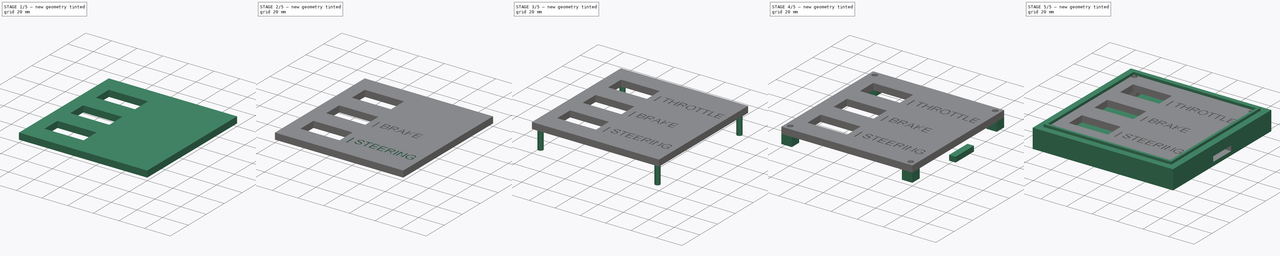
[diagram: build sequence overview — one tinted view per stage of 5, left to right]
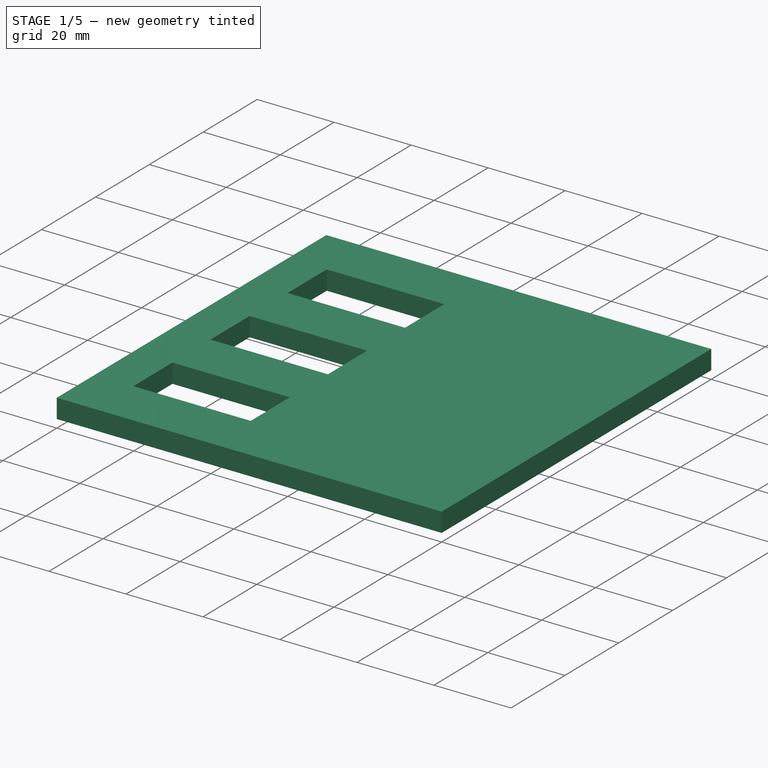
[diagram: stage 1 of 5 — iso view after this stage's code; geometry added in this stage tinted green]
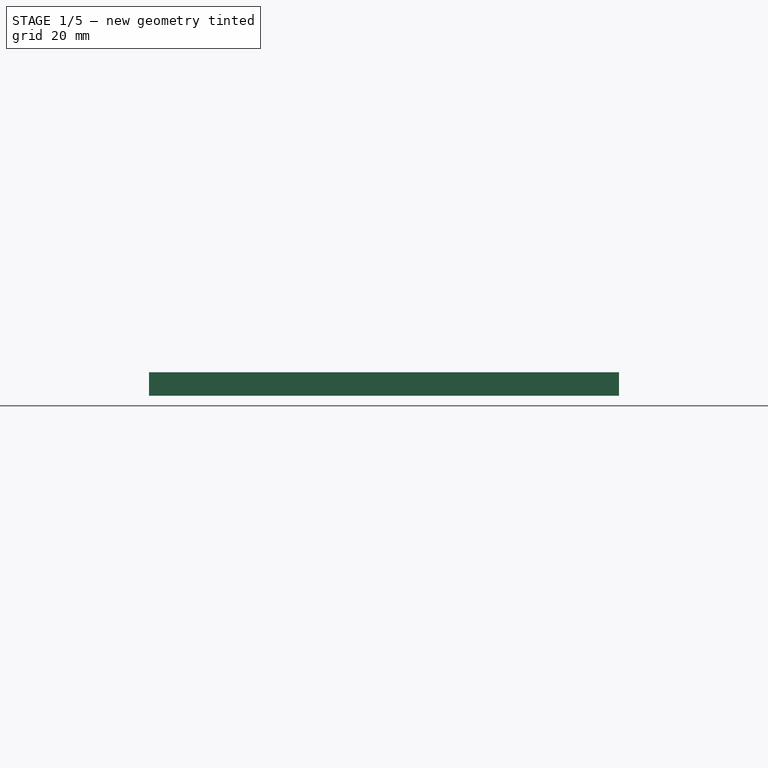
[diagram: stage 1 of 5 — front view after this stage's code; geometry added in this stage tinted green]
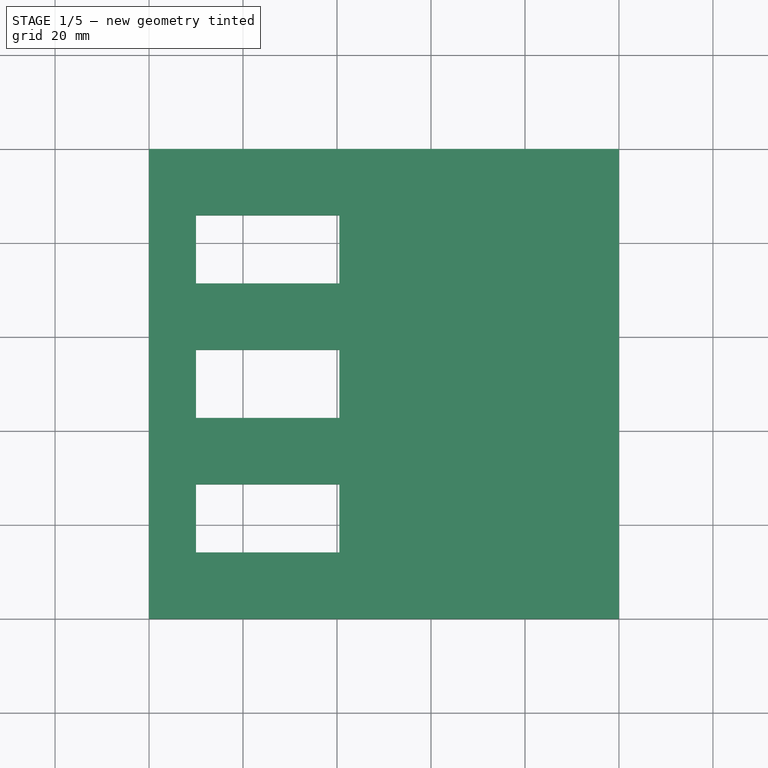
[diagram: stage 1 of 5 — top view after this stage's code; geometry added in this stage tinted green]
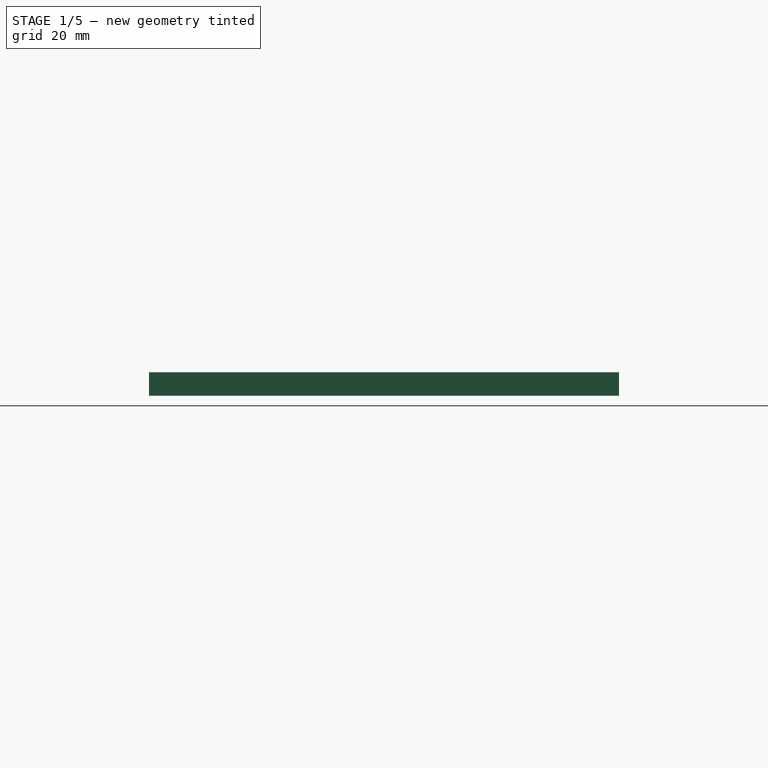
[diagram: stage 1 of 5 — right view after this stage's code; geometry added in this stage tinted green]
FCSTD DOCUMENT  (FreeCAD 0.20R29177 +426 (Git))
Label: ScreenCase
License: All rights reserved
LicenseURL: http://en.wikipedia.org/wiki/All_rights_reserved
objects: Part::Extrusion×11, Sketcher::SketchObject×8, Part::Cut×7, Part::Part2DObjectPython×3, Part::Box×1, Part::MultiFuse×1
note: 31 computed .brp shape members not serialized (recipe doc carries the construction recipe); baked Part::Feature solids carry a one-line shape summary decoded from their .brp

FEATURE [Part::Box] Box  label="InnerTopBase"
  AttacherType = Attacher::AttachEngine3D
  Height = 5
  Length = 100
  Width = 100
FEATURE [Part::Extrusion] Extrude002  label="BrakeExt"
  Base = -> ShapeString001
  Dir = (0,0,1)
  DirMode = 2
  FaceMakerClass = Part::FaceMakerBullseye
  LengthFwd = 1
  LengthRev = 0
  Placement = pos=(44.7391,44.6523,4) rot=(0,0,1;0rad)
  Solid = false
  Symmetric = false
FEATURE [Part::Extrusion] Extrude003  label="WindowExt"
  Base = -> Sketch
  Dir = (0,0,1)
  DirMode = 2
  FaceMakerClass = Part::FaceMakerBullseye
  LengthFwd = 0
  LengthRev = 5
  Solid = true
  Symmetric = false
FEATURE [Part::Cut] Cut  label="InnerTopWindows"
  Base = -> Box
  Tool = -> Extrude003
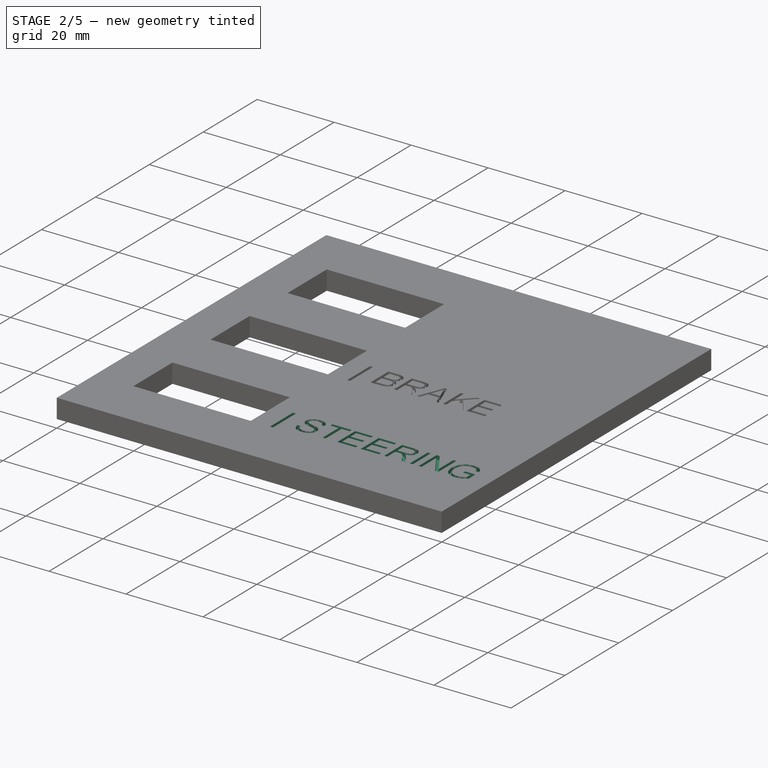
[diagram: stage 2 of 5 — iso view after this stage's code; geometry added in this stage tinted green]
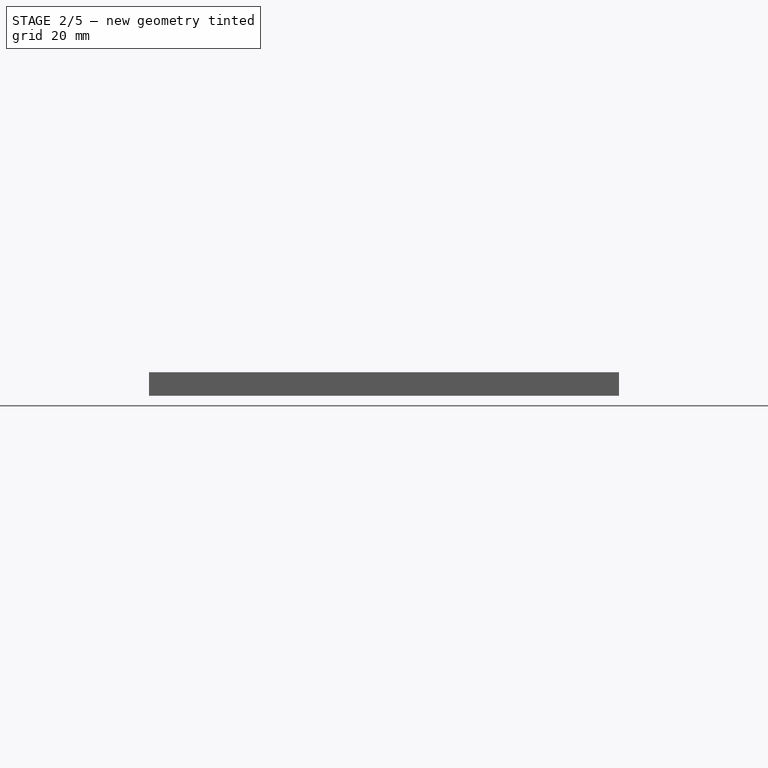
[diagram: stage 2 of 5 — front view after this stage's code; geometry added in this stage tinted green]
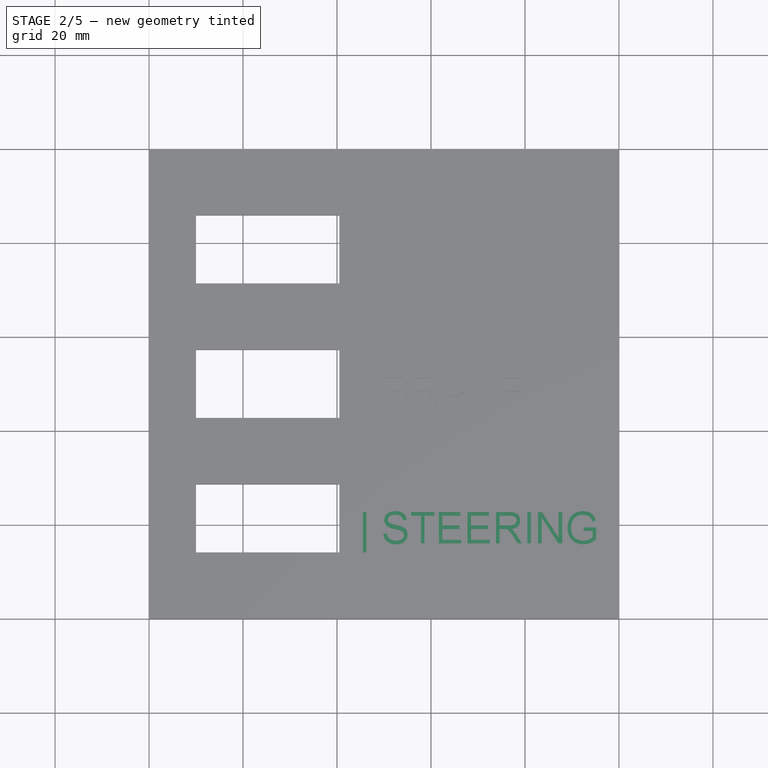
[diagram: stage 2 of 5 — top view after this stage's code; geometry added in this stage tinted green]
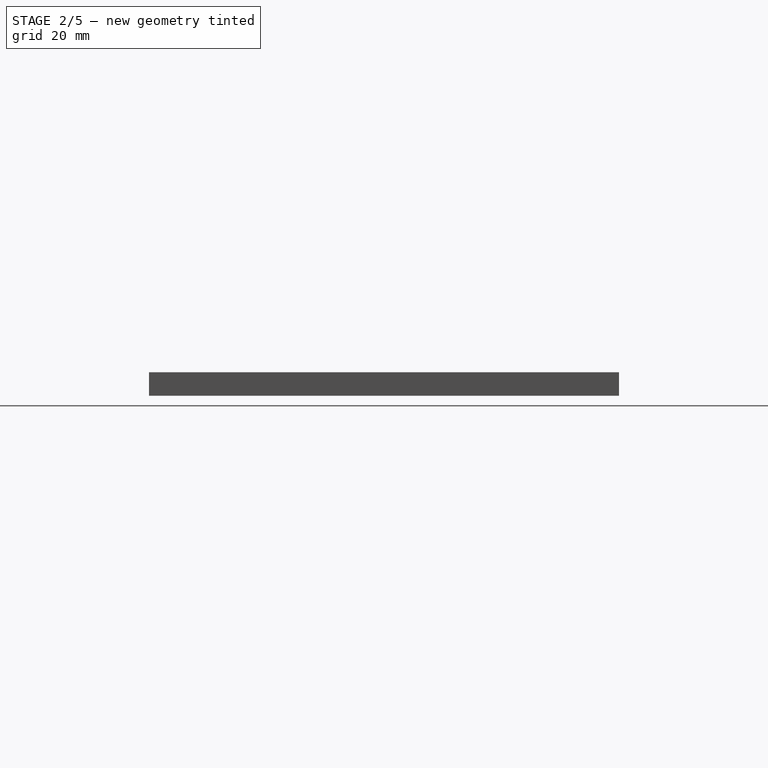
[diagram: stage 2 of 5 — right view after this stage's code; geometry added in this stage tinted green]
FEATURE [Sketcher::SketchObject] Sketch  label="WindowSketch"
  ExternalGeometry = -> [Box]
  FullyConstrained = true
  MapMode = 5
  Placement = pos=(0,0,5) rot=(0,0,1;0rad)
  Support = -> [Box]
  sketch-geometry (16):
    g0: LineSegment StartX=10 StartY=71.375 StartZ=0 EndX=40.5 EndY=71.375 EndZ=0
    g1: LineSegment StartX=40.5 StartY=71.375 StartZ=0 EndX=40.5 EndY=85.875 EndZ=0
    g2: LineSegment StartX=40.5 StartY=85.875 StartZ=0 EndX=10 EndY=85.875 EndZ=0
    g3: LineSegment StartX=10 StartY=85.875 StartZ=0 EndX=10 EndY=71.375 EndZ=0
    g4: LineSegment StartX=10 StartY=42.75 StartZ=0 EndX=40.5 EndY=42.75 EndZ=0
    g5: LineSegment StartX=40.5 StartY=42.75 StartZ=0 EndX=40.5 EndY=57.25 EndZ=0
    g6: LineSegment StartX=40.5 StartY=57.25 StartZ=0 EndX=10 EndY=57.25 EndZ=0
    g7: LineSegment StartX=10 StartY=57.25 StartZ=0 EndX=10 EndY=42.75 EndZ=0
    g8: LineSegment StartX=10 StartY=14.125 StartZ=0 EndX=40.5 EndY=14.125 EndZ=0
    g9: LineSegment StartX=40.5 StartY=14.125 StartZ=0 EndX=40.5 EndY=28.625 EndZ=0
    g10: LineSegment StartX=40.5 StartY=28.625 StartZ=0 EndX=10 EndY=28.625 EndZ=0
    g11: LineSegment StartX=10 StartY=28.625 StartZ=0 EndX=10 EndY=14.125 EndZ=0
    g12: LineSegment StartX=10 StartY=28.625 StartZ=0 EndX=10 EndY=42.75 EndZ=0
    g13: LineSegment StartX=10 StartY=57.25 StartZ=0 EndX=10 EndY=71.375 EndZ=0
    g14: LineSegment StartX=10 StartY=85.875 StartZ=0 EndX=10 EndY=100 EndZ=0
    g15: LineSegment StartX=10 StartY=14.125 StartZ=0 EndX=10 EndY=0 EndZ=0
  constraints (46):
    c: Coincident(g0,g1)
    c: Coincident(g1,g2)
    c: Coincident(g2,g3)
    c: Coincident(g3,g0)
    c: Horizontal(g0)
    c: Horizontal(g2)
    c: Vertical(g1)
    c: Vertical(g3)
    c: Coincident(g4,g5)
    c: Coincident(g5,g6)
    c: Coincident(g6,g7)
    c: Coincident(g7,g4)
    c: Horizontal(g4)
    c: Horizontal(g6)
    c: Vertical(g5)
    c: Vertical(g7)
    c: Coincident(g8,g9)
    c: Coincident(g9,g10)
    c: Coincident(g10,g11)
    c: Coincident(g11,g8)
    c: Horizontal(g8)
    c: Horizontal(g10)
    c: Vertical(g9)
    c: Vertical(g11)
    c: Coincident(g12,g10)
    c: Coincident(g12,g4)
    c: Vertical(g12)
    c: Coincident(g13,g6)
    c: Coincident(g13,g0)
    c: Vertical(g13)
    c: Coincident(g14,g2)
    c: PointOnObject(g14,g-4)
    c: Vertical(g14)
    c: Coincident(g15,g8)
    c: PointOnObject(g15,g-5)
    c: Vertical(g15)
    c: Equal(g14,g13)
    c: Equal(g13,g12)
    c: Equal(g12,g15)
    c: Distance(g2) = 30.5
    c: DistanceY(g3,g3) = 14.5
    c: Equal(g3,g7)
    c: Equal(g7,g11)
    c: Equal(g2,g6)
    c: Equal(g6,g10)
    c: DistanceX(g-6,g2) = 10
FEATURE [Part::Part2DObjectPython] ShapeString  label="ThrottleStr"  # Draft 2D object (typed FeaturePython)
  FontFile = <path>
  MakeFace = true
  Placement = pos=(-0.43482,1.08705,0) rot=(0,0,1;0rad)
  Size = 7
  String = | THROTTLE
  Tracking = 0
FEATURE [Part::Part2DObjectPython] ShapeString001  label="ShapeStr"  # Draft 2D object (typed FeaturePython)
  FontFile = <path>
  MakeFace = true
  Size = 7
  String = | BRAKE
  Tracking = 0
FEATURE [Part::Part2DObjectPython] ShapeString002  label="SteeringStr"  # Draft 2D object (typed FeaturePython)
  FontFile = <path>
  MakeFace = true
  Size = 7
  String = | STEERING
  Tracking = 0
FEATURE [Part::Extrusion] Extrude  label="ThrottleExt"
  Base = -> ShapeString
  Dir = (0,0,1)
  DirMode = 2
  FaceMakerClass = Part::FaceMakerBullseye
  LengthFwd = 1
  LengthRev = 0
  Placement = pos=(45.1739,72.1903,4) rot=(0,0,1;0rad)
  Solid = false
  Symmetric = false
FEATURE [Part::Extrusion] Extrude001  label="SteeringExt"
  Base = -> ShapeString002
  Dir = (0,0,1)
  DirMode = 2
  FaceMakerClass = Part::FaceMakerBullseye
  LengthFwd = 1
  LengthRev = 0
  Placement = pos=(44.7391,16.0273,4) rot=(0,0,1;0rad)
  Solid = false
  Symmetric = false
FEATURE [Sketcher::SketchObject] Sketch001  label="TextStartGeom"
  ExternalGeometry = -> [Cut]
  FullyConstrained = true
  MapMode = 5
  Placement = pos=(0,0,5) rot=(0,0,1;0rad)
  Support = -> [Cut]
  sketch-geometry (3):
    g0: LineSegment StartX=40.5 StartY=71.375 StartZ=0 EndX=45.5 EndY=71.375 EndZ=0
    g1: LineSegment StartX=40.5 StartY=42.75 StartZ=0 EndX=45.5 EndY=42.75 EndZ=0
    g2: LineSegment StartX=40.5 StartY=14.125 StartZ=0 EndX=45.5 EndY=14.125 EndZ=0
  constraints (9):
    c: Coincident(g0,g-3)
    c: Horizontal(g0)
    c: Coincident(g1,g-4)
    c: Horizontal(g1)
    c: Coincident(g2,g-5)
    c: Horizontal(g2)
    c: Equal(g2,g1)
    c: Equal(g1,g0)
    c: Distance(g0) = 5
FEATURE [Part::Cut] Cut001
  Base = -> Cut
  Tool = -> Extrude002
FEATURE [Part::Cut] Cut002
  Base = -> Cut001
  Tool = -> Extrude001
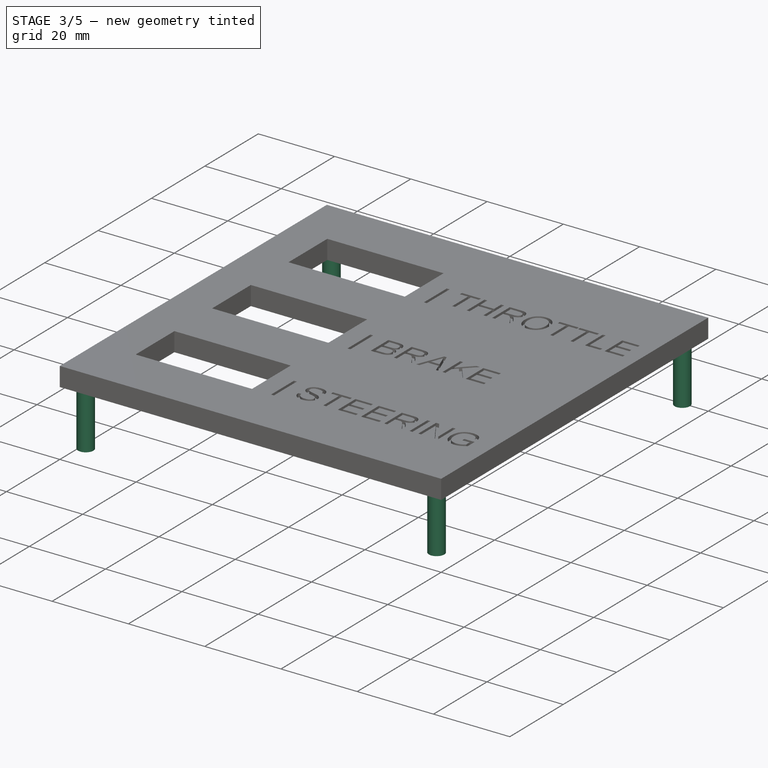
[diagram: stage 3 of 5 — iso view after this stage's code; geometry added in this stage tinted green]
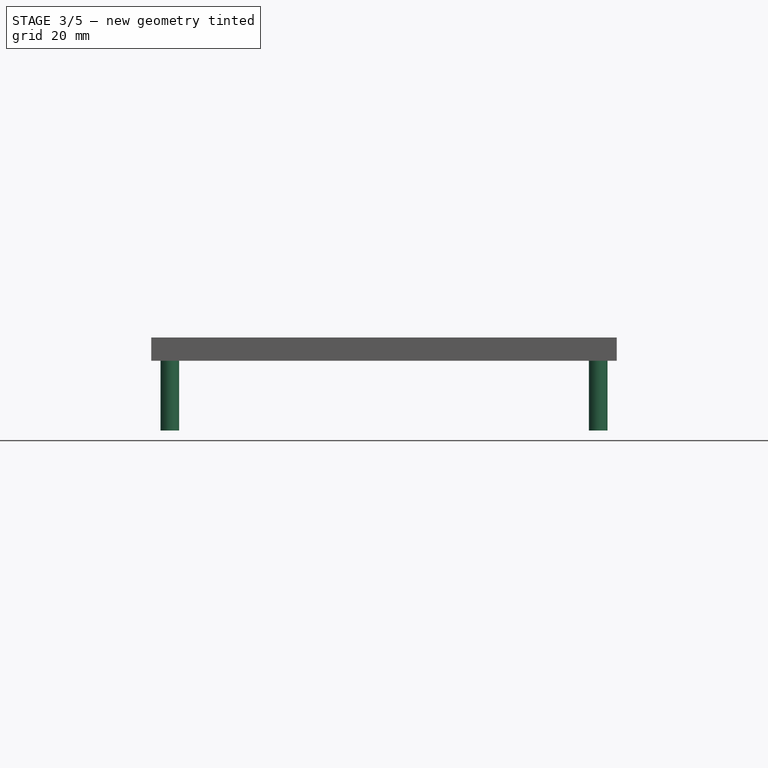
[diagram: stage 3 of 5 — front view after this stage's code; geometry added in this stage tinted green]
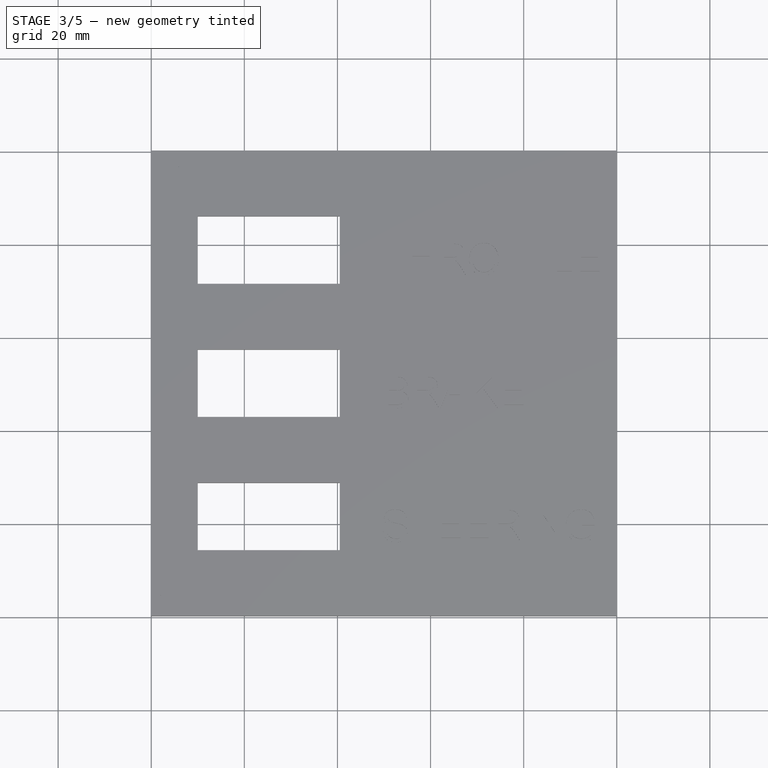
[diagram: stage 3 of 5 — top view after this stage's code; geometry added in this stage tinted green]
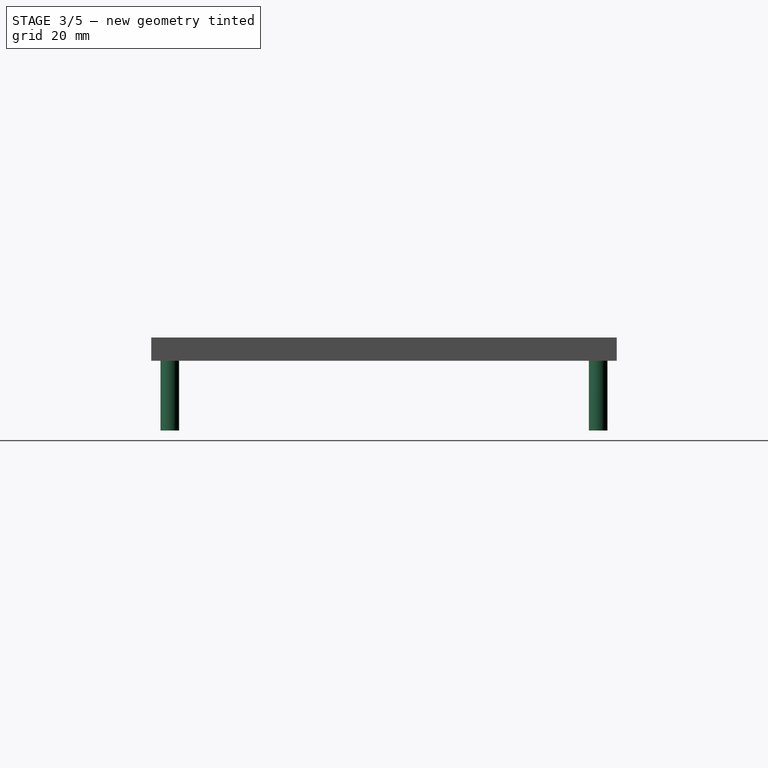
[diagram: stage 3 of 5 — right view after this stage's code; geometry added in this stage tinted green]
FEATURE [Part::Cut] Cut003  label="TopWindowsText"
  Base = -> Cut002
  Tool = -> Extrude
FEATURE [Sketcher::SketchObject] Sketch003
  ExternalGeometry = -> [Cut003]
  FullyConstrained = true
  MapMode = 5
  Placement = pos=(0,0,5) rot=(0,0,1;0rad)
  Support = -> [Cut003]
  sketch-geometry (12):
    g0: Circle CenterX=4 CenterY=96 CenterZ=0 NormalX=0 NormalY=0 NormalZ=1 AngleXU=0 Radius=2
    g1: Circle CenterX=96 CenterY=96 CenterZ=0 NormalX=0 NormalY=0 NormalZ=1 AngleXU=0 Radius=2
    g2: Circle CenterX=96 CenterY=4 CenterZ=0 NormalX=0 NormalY=0 NormalZ=1 AngleXU=0 Radius=2
    g3: Circle CenterX=4 CenterY=4 CenterZ=0 NormalX=0 NormalY=0 NormalZ=1 AngleXU=0 Radius=2
    g4: LineSegment StartX=4 StartY=100 StartZ=0 EndX=4 EndY=96 EndZ=0
    g5: LineSegment StartX=4 StartY=96 StartZ=0 EndX=0 EndY=96 EndZ=0
    g6: LineSegment StartX=96 StartY=96 StartZ=0 EndX=96 EndY=100 EndZ=0
    g7: LineSegment StartX=96 StartY=96 StartZ=0 EndX=100 EndY=96 EndZ=0
    g8: LineSegment StartX=96 StartY=4 StartZ=0 EndX=100 EndY=4 EndZ=0
    g9: LineSegment StartX=96 StartY=4 StartZ=0 EndX=96 EndY=0 EndZ=0
    g10: LineSegment StartX=4 StartY=4 StartZ=0 EndX=4 EndY=0 EndZ=0
    g11: LineSegment StartX=4 StartY=4 StartZ=0 EndX=0 EndY=4 EndZ=0
  constraints (36):
    c: PointOnObject(g4,g-3)
    c: Coincident(g4,g0)
    c: Vertical(g4)
    c: Coincident(g5,g0)
    c: PointOnObject(g5,g-2)
    c: Horizontal(g5)
    c: Equal(g5,g4)
    c: Radius(g0) = 2
    c: DistanceX(g5,g5) = 4
    c: Equal(g1,g0)
    c: Coincident(g6,g1)
    c: PointOnObject(g6,g-3)
    c: Vertical(g6)
    c: Coincident(g7,g1)
    c: PointOnObject(g7,g-4)
    c: Horizontal(g7)
    c: Equal(g6,g7)
    c: Equal(g7,g4)
    c: Equal(g2,g0)
    c: Equal(g3,g0)
    c: Coincident(g8,g2)
    c: PointOnObject(g8,g-4)
    c: Horizontal(g8)
    c: Coincident(g9,g2)
    c: PointOnObject(g9,g-1)
    c: Vertical(g9)
    c: Coincident(g10,g3)
    c: PointOnObject(g10,g-1)
    c: Vertical(g10)
    c: Coincident(g11,g3)
    c: PointOnObject(g11,g-2)
    c: Horizontal(g11)
    c: Equal(g8,g9)
    c: Equal(g9,g4)
    c: Equal(g10,g11)
    c: Equal(g11,g4)
FEATURE [Part::Extrusion] Extrude005  label="ScrewsTop"
  Base = -> Sketch003
  Dir = (0,0,1)
  DirMode = 2
  FaceMakerClass = Part::FaceMakerBullseye
  LengthFwd = 0
  LengthRev = 20
  Solid = true
  Symmetric = false
FEATURE [Part::Extrusion] Extrude010  label="ScrewsBase"
  Base = -> Sketch003
  Dir = (0,0,1)
  DirMode = 2
  FaceMakerClass = Part::FaceMakerBullseye
  LengthFwd = 0
  LengthRev = 20
  Solid = true
  Symmetric = false
FEATURE [Part::Cut] Cut006  label="Top"
  Base = -> Cut003
  Tool = -> Extrude005
note: 3 file-system paths scrubbed to <path> (originals preserved in the JSON sidecar)
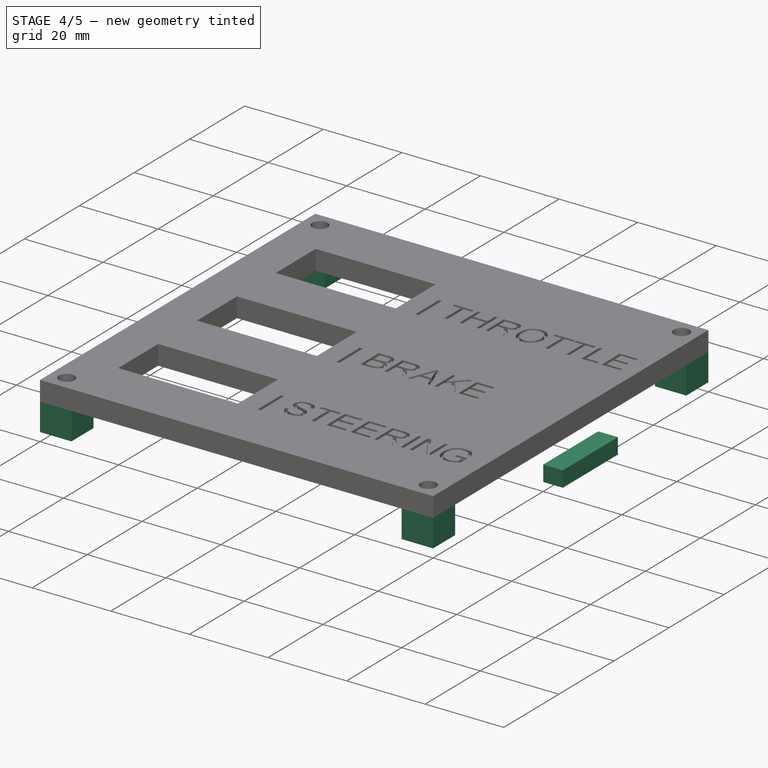
[diagram: stage 4 of 5 — iso view after this stage's code; geometry added in this stage tinted green]
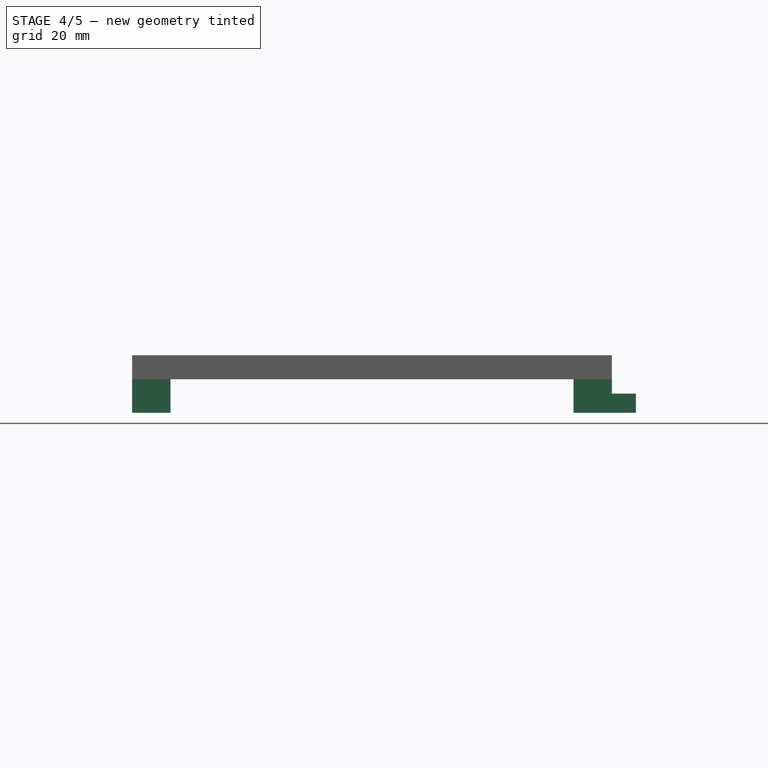
[diagram: stage 4 of 5 — front view after this stage's code; geometry added in this stage tinted green]
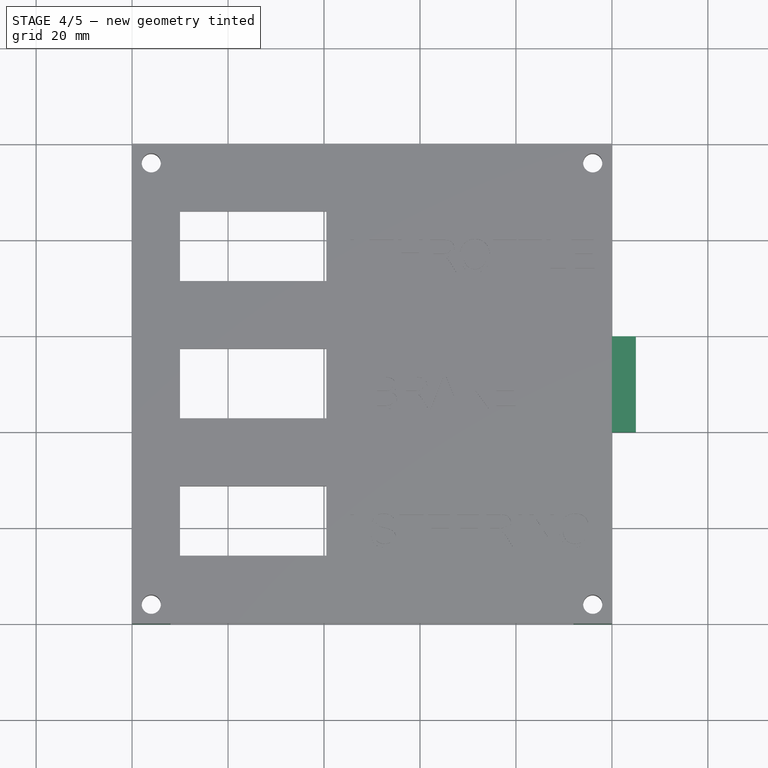
[diagram: stage 4 of 5 — top view after this stage's code; geometry added in this stage tinted green]
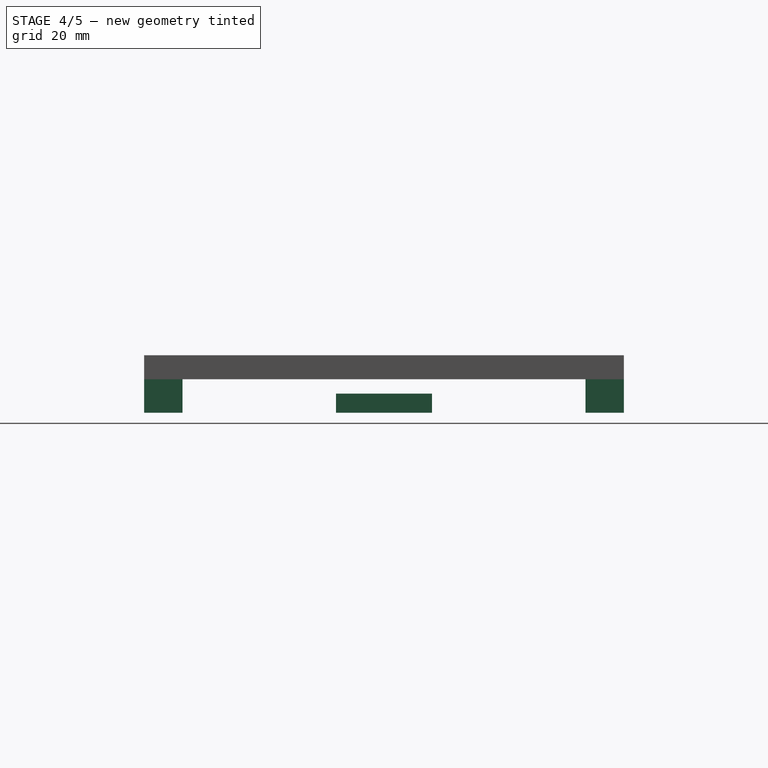
[diagram: stage 4 of 5 — right view after this stage's code; geometry added in this stage tinted green]
FEATURE [Sketcher::SketchObject] Sketch004
  ExternalGeometry = -> [Cut003,Extrude005]
  FullyConstrained = true
  MapMode = 5
  Placement = pos=(0,0,0) rot=(1,0,0;3.14159rad)
  Support = -> [Cut003]
  sketch-geometry (18):
    g0: LineSegment StartX=0 StartY=0 StartZ=0 EndX=8 EndY=0 EndZ=0
    g1: LineSegment StartX=8 StartY=0 StartZ=0 EndX=8 EndY=-8 EndZ=0
    g2: LineSegment StartX=8 StartY=-8 StartZ=0 EndX=0 EndY=-8 EndZ=0
    g3: LineSegment StartX=0 StartY=-8 StartZ=0 EndX=0 EndY=0 EndZ=0
    g4: LineSegment StartX=100 StartY=0 StartZ=0 EndX=92 EndY=0 EndZ=0
    g5: LineSegment StartX=92 StartY=0 StartZ=0 EndX=92 EndY=-8 EndZ=0
    g6: LineSegment StartX=92 StartY=-8 StartZ=0 EndX=100 EndY=-8 EndZ=0
    g7: LineSegment StartX=100 StartY=-8 StartZ=0 EndX=100 EndY=0 EndZ=0
    g8: LineSegment StartX=100 StartY=-100 StartZ=0 EndX=92 EndY=-100 EndZ=0
    g9: LineSegment StartX=92 StartY=-100 StartZ=0 EndX=92 EndY=-92 EndZ=0
    g10: LineSegment StartX=92 StartY=-92 StartZ=0 EndX=100 EndY=-92 EndZ=0
    g11: LineSegment StartX=100 StartY=-92 StartZ=0 EndX=100 EndY=-100 EndZ=0
    g12: LineSegment StartX=0 StartY=-100 StartZ=0 EndX=8 EndY=-100 EndZ=0
    g13: LineSegment StartX=8 StartY=-100 StartZ=0 EndX=8 EndY=-92 EndZ=0
    g14: LineSegment StartX=8 StartY=-92 StartZ=0 EndX=0 EndY=-92 EndZ=0
    g15: LineSegment StartX=0 StartY=-92 StartZ=0 EndX=0 EndY=-100 EndZ=0
    g16: LineSegment StartX=4 StartY=0 StartZ=0 EndX=4 EndY=-4 EndZ=0
    g17: LineSegment StartX=4 StartY=-4 StartZ=0 EndX=4 EndY=-8 EndZ=0
  constraints (50):
    c: Coincident(g0,g1)
    c: Coincident(g1,g2)
    c: Coincident(g2,g3)
    c: Coincident(g3,g0)
    c: Horizontal(g0)
    c: Horizontal(g2)
    c: Vertical(g1)
    c: Vertical(g3)
    c: Coincident(g0,g-1)
    c: Coincident(g4,g5)
    c: Coincident(g5,g6)
    c: Coincident(g6,g7)
    c: Coincident(g7,g4)
    c: Horizontal(g4)
    c: Horizontal(g6)
    c: Vertical(g5)
    c: Vertical(g7)
    c: Coincident(g4,g-3)
    c: Coincident(g8,g9)
    c: Coincident(g9,g10)
    c: Coincident(g10,g11)
    c: Coincident(g11,g8)
    c: Horizontal(g8)
    c: Horizontal(g10)
    c: Vertical(g9)
    c: Vertical(g11)
    c: Coincident(g8,g-4)
    c: Coincident(g12,g13)
    c: Coincident(g13,g14)
    c: Coincident(g14,g15)
    c: Coincident(g15,g12)
    c: Horizontal(g12)
    c: Horizontal(g14)
    c: Vertical(g13)
    c: Vertical(g15)
    c: Coincident(g12,g-4)
    c: Equal(g2,g3)
    c: Equal(g1,g5)
    c: Equal(g5,g6)
    c: Equal(g4,g8)
    c: Equal(g8,g9)
    c: Equal(g11,g12)
    c: Equal(g12,g15)
    c: PointOnObject(g16,g0)
    c: Coincident(g16,g-5)
    c: Vertical(g16)
    c: Coincident(g17,g16)
    c: PointOnObject(g17,g2)
    c: Vertical(g17)
    c: Equal(g17,g16)
FEATURE [Part::Extrusion] Extrude006  label="BaseScrewBlocks"
  Base = -> Sketch004
  Dir = (0,0,-1)
  DirMode = 2
  FaceMakerClass = Part::FaceMakerBullseye
  LengthFwd = 7
  LengthRev = 0
  Solid = true
  Symmetric = false
FEATURE [Sketcher::SketchObject] Sketch005
  ExternalGeometry = -> [Cut003]
  FullyConstrained = true
  MapMode = 5
  Placement = pos=(0,0,0) rot=(1,0,0;3.14159rad)
  Support = -> [Cut003]
  sketch-geometry (8):
    g0: LineSegment StartX=105 StartY=-105 StartZ=0 EndX=-5 EndY=-105 EndZ=0
    g1: LineSegment StartX=-5 StartY=-105 StartZ=0 EndX=-5 EndY=5 EndZ=0
    g2: LineSegment StartX=-5 StartY=5 StartZ=0 EndX=105 EndY=5 EndZ=0
    g3: LineSegment StartX=105 StartY=5 StartZ=0 EndX=105 EndY=-105 EndZ=0
    g4: LineSegment StartX=100 StartY=-100 StartZ=0 EndX=0 EndY=-100 EndZ=0
    g5: LineSegment StartX=0 StartY=-100 StartZ=0 EndX=0 EndY=0 EndZ=0
    g6: LineSegment StartX=0 StartY=0 StartZ=0 EndX=100 EndY=0 EndZ=0
    g7: LineSegment StartX=100 StartY=0 StartZ=0 EndX=100 EndY=-100 EndZ=0
  constraints (22):
    c: Coincident(g0,g1)
    c: Coincident(g1,g2)
    c: Coincident(g2,g3)
    c: Coincident(g3,g0)
    c: Horizontal(g0)
    c: Horizontal(g2)
    c: Vertical(g1)
    c: Vertical(g3)
    c: DistanceX(g-4,g0) = 5
    c: DistanceY(g0,g-4) = 5
    c: DistanceY(g-6,g1) = 5
    c: DistanceX(g1,g-6) = 5
    c: Coincident(g4,g5)
    c: Coincident(g5,g6)
    c: Coincident(g6,g7)
    c: Coincident(g7,g4)
    c: Horizontal(g4)
    c: Horizontal(g6)
    c: Vertical(g5)
    c: Vertical(g7)
    c: Coincident(g4,g-4)
    c: Coincident(g5,g-6)
FEATURE [Part::Extrusion] Extrude007  label="BaseWalls"
  Base = -> Sketch005
  Dir = (0,0,-1)
  DirMode = 2
  FaceMakerClass = Part::FaceMakerBullseye
  LengthFwd = 7
  LengthRev = 5
  Solid = true
  Symmetric = false
FEATURE [Sketcher::SketchObject] Sketch007
  ExternalGeometry = -> [Extrude007]
  FullyConstrained = true
  MapMode = 5
  Placement = pos=(105,0,0) rot=(0.57735,0.57735,0.57735;2.0944rad)
  Support = -> [Extrude007]
  sketch-geometry (6):
    g0: LineSegment StartX=40 StartY=-7 StartZ=0 EndX=60 EndY=-7 EndZ=0
    g1: LineSegment StartX=60 StartY=-7 StartZ=0 EndX=60 EndY=-3 EndZ=0
    g2: LineSegment StartX=60 StartY=-3 StartZ=0 EndX=40 EndY=-3 EndZ=0
    g3: LineSegment StartX=40 StartY=-3 StartZ=0 EndX=40 EndY=-7 EndZ=0
    g4: LineSegment StartX=40 StartY=-3 StartZ=0 EndX=-5 EndY=-3 EndZ=0
    g5: LineSegment StartX=60 StartY=-3 StartZ=0 EndX=105 EndY=-3 EndZ=0
  constraints (18):
    c: Coincident(g0,g1)
    c: Coincident(g1,g2)
    c: Coincident(g2,g3)
    c: Coincident(g3,g0)
    c: Horizontal(g0)
    c: Horizontal(g2)
    c: Vertical(g1)
    c: Vertical(g3)
    c: PointOnObject(g0,g-3)
    c: Coincident(g4,g2)
    c: PointOnObject(g4,g-5)
    c: Horizontal(g4)
    c: Coincident(g5,g1)
    c: PointOnObject(g5,g-4)
    c: Horizontal(g5)
    c: Equal(g5,g4)
    c: DistanceX(g2,g2) = 20
    c: DistanceY(g1,g1) = 4
FEATURE [Part::Extrusion] Extrude009  label="WireHole"
  Base = -> Sketch007
  Dir = (1,0,0)
  DirMode = 2
  FaceMakerClass = Part::FaceMakerBullseye
  LengthFwd = 0
  LengthRev = 5
  Solid = true
  Symmetric = false
FEATURE [Part::Cut] Cut005  label="BaseScrewHoles"
  Base = -> Extrude006
  Tool = -> Extrude010
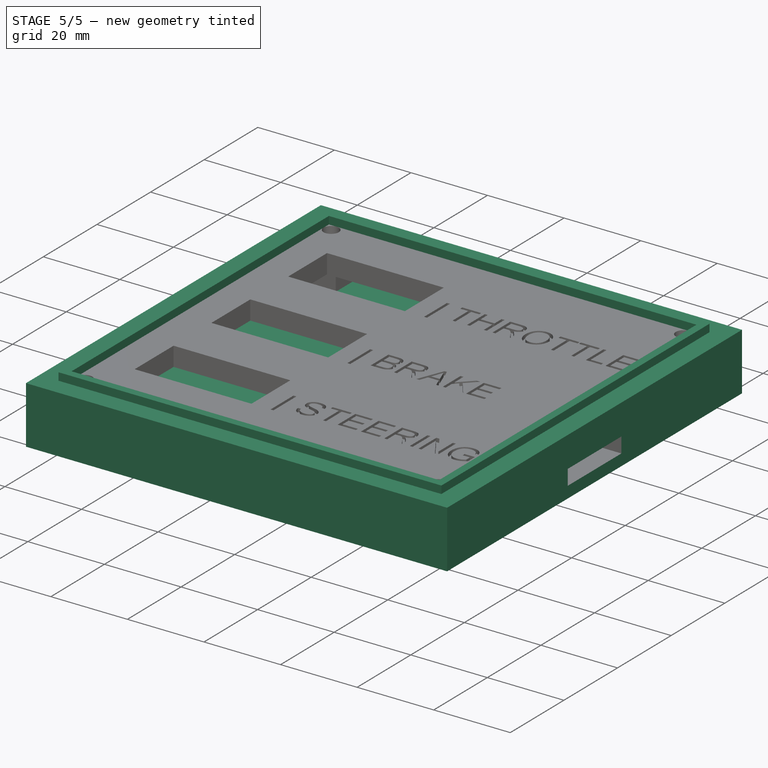
[diagram: stage 5 of 5 — iso view after this stage's code; geometry added in this stage tinted green]
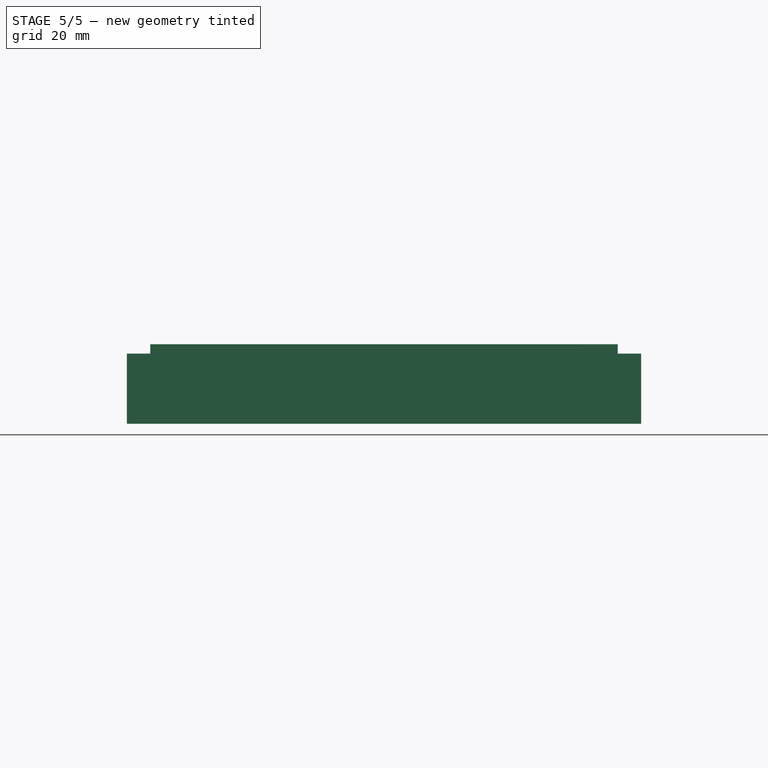
[diagram: stage 5 of 5 — front view after this stage's code; geometry added in this stage tinted green]
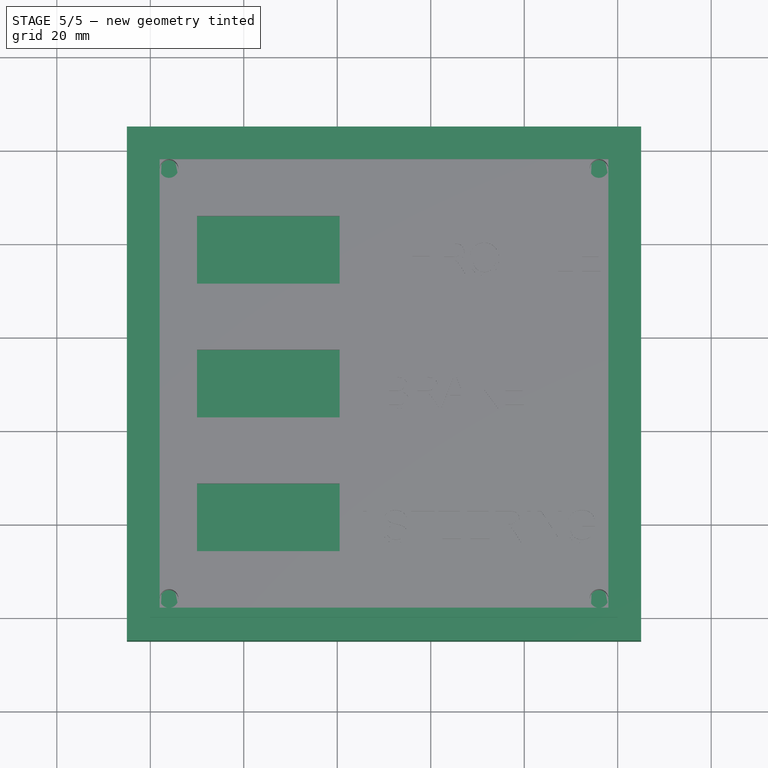
[diagram: stage 5 of 5 — top view after this stage's code; geometry added in this stage tinted green]
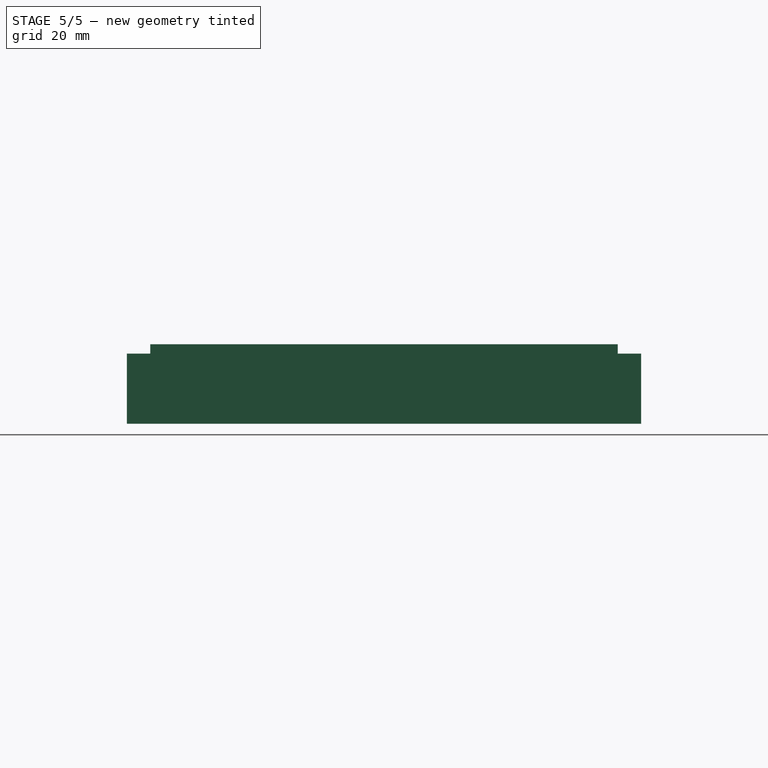
[diagram: stage 5 of 5 — right view after this stage's code; geometry added in this stage tinted green]
FEATURE [Sketcher::SketchObject] Sketch002
  ExternalGeometry = -> [Cut003]
  FullyConstrained = true
  MapMode = 5
  Placement = pos=(0,0,5) rot=(0,0,1;0rad)
  Support = -> [Cut003]
  sketch-geometry (8):
    g0: LineSegment StartX=2 StartY=98 StartZ=0 EndX=98 EndY=98 EndZ=0
    g1: LineSegment StartX=98 StartY=98 StartZ=0 EndX=98 EndY=2 EndZ=0
    g2: LineSegment StartX=98 StartY=2 StartZ=0 EndX=2 EndY=2 EndZ=0
    g3: LineSegment StartX=2 StartY=2 StartZ=0 EndX=2 EndY=98 EndZ=0
    g4: LineSegment StartX=0 StartY=100 StartZ=0 EndX=100 EndY=100 EndZ=0
    g5: LineSegment StartX=100 StartY=100 StartZ=0 EndX=100 EndY=0 EndZ=0
    g6: LineSegment StartX=100 StartY=0 StartZ=0 EndX=0 EndY=0 EndZ=0
    g7: LineSegment StartX=0 StartY=0 StartZ=0 EndX=0 EndY=100 EndZ=0
  constraints (22):
    c: Coincident(g0,g1)
    c: Coincident(g1,g2)
    c: Coincident(g2,g3)
    c: Coincident(g3,g0)
    c: Horizontal(g0)
    c: Horizontal(g2)
    c: Vertical(g1)
    c: Vertical(g3)
    c: DistanceY(g0,g-3) = 2
    c: DistanceX(g-3,g0) = 2
    c: DistanceX(g1,g-4) = 2
    c: DistanceY(g-4,g1) = 2
    c: Coincident(g4,g5)
    c: Coincident(g5,g6)
    c: Coincident(g6,g7)
    c: Coincident(g7,g4)
    c: Horizontal(g4)
    c: Horizontal(g6)
    c: Vertical(g5)
    c: Vertical(g7)
    c: Coincident(g4,g-3)
    c: Coincident(g5,g-4)
FEATURE [Part::Extrusion] Extrude004  label="TopLip"
  Base = -> Sketch002
  Dir = (0,0,1)
  DirMode = 2
  FaceMakerClass = Part::FaceMakerBullseye
  LengthFwd = 2
  LengthRev = 0
  Solid = true
  Symmetric = false
FEATURE [Sketcher::SketchObject] Sketch006
  ExternalGeometry = -> [Extrude007]
  FullyConstrained = true
  MapMode = 5
  Placement = pos=(0,0,-7) rot=(1,0,0;3.14159rad)
  Support = -> [Extrude007]
  sketch-geometry (4):
    g0: LineSegment StartX=105 StartY=5 StartZ=0 EndX=-5 EndY=5 EndZ=0
    g1: LineSegment StartX=-5 StartY=5 StartZ=0 EndX=-5 EndY=-105 EndZ=0
    g2: LineSegment StartX=-5 StartY=-105 StartZ=0 EndX=105 EndY=-105 EndZ=0
    g3: LineSegment StartX=105 StartY=-105 StartZ=0 EndX=105 EndY=5 EndZ=0
  constraints (10):
    c: Coincident(g0,g1)
    c: Coincident(g1,g2)
    c: Coincident(g2,g3)
    c: Coincident(g3,g0)
    c: Horizontal(g0)
    c: Horizontal(g2)
    c: Vertical(g1)
    c: Vertical(g3)
    c: Coincident(g0,g-3)
    c: Coincident(g1,g-4)
FEATURE [Part::Extrusion] Extrude008  label="BaseBottom"
  Base = -> Sketch006
  Dir = (0,0,-1)
  DirMode = 2
  FaceMakerClass = Part::FaceMakerBullseye
  LengthFwd = 3
  LengthRev = 0
  Solid = true
  Symmetric = false
FEATURE [Part::Cut] Cut004  label="BaseWallsWithHole"
  Base = -> Extrude007
  Tool = -> Extrude009
FEATURE [Part::MultiFuse] Fusion  label="Base"
  Shapes = -> [Cut005,Cut004,Extrude008]
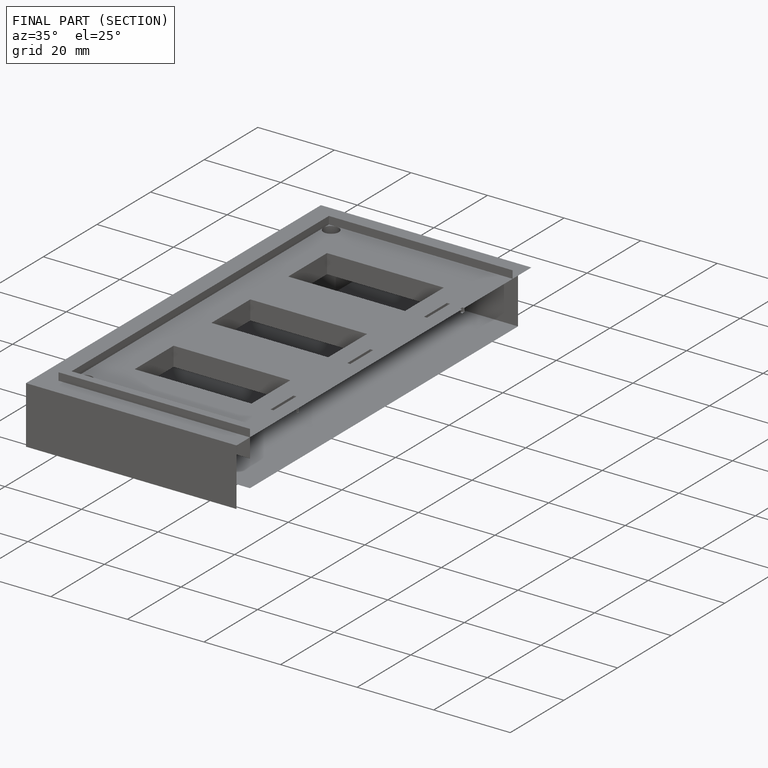
[diagram: finished part — half-section view (interior)]
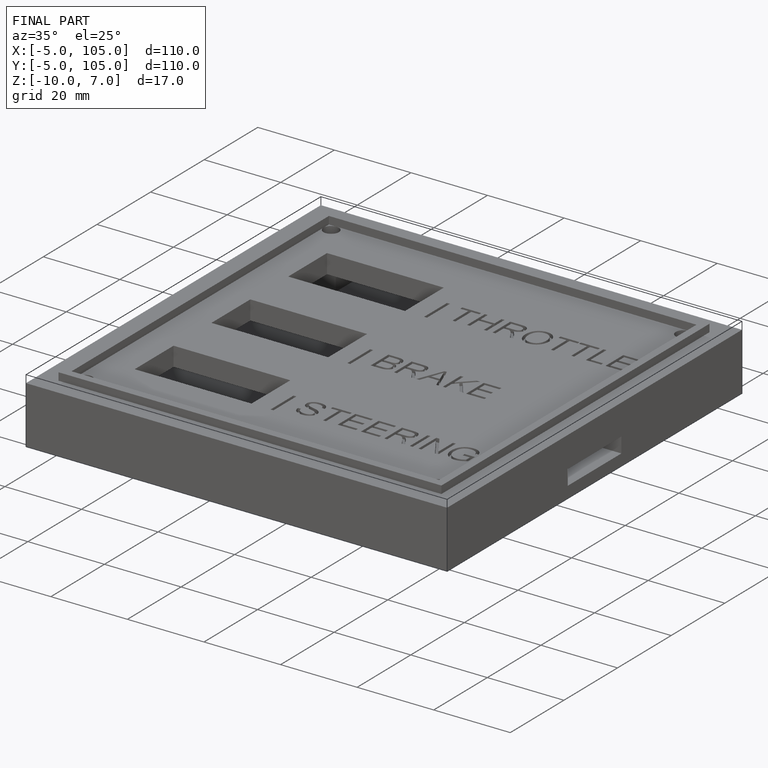
[diagram: finished part — iso view with bounding-box wireframe]
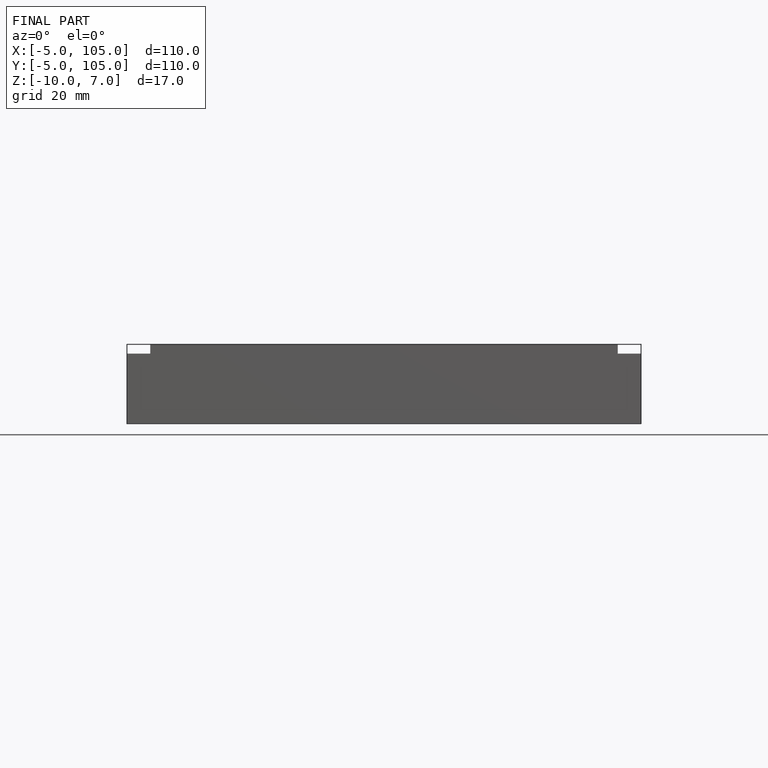
[diagram: finished part — front view with bounding-box wireframe]
